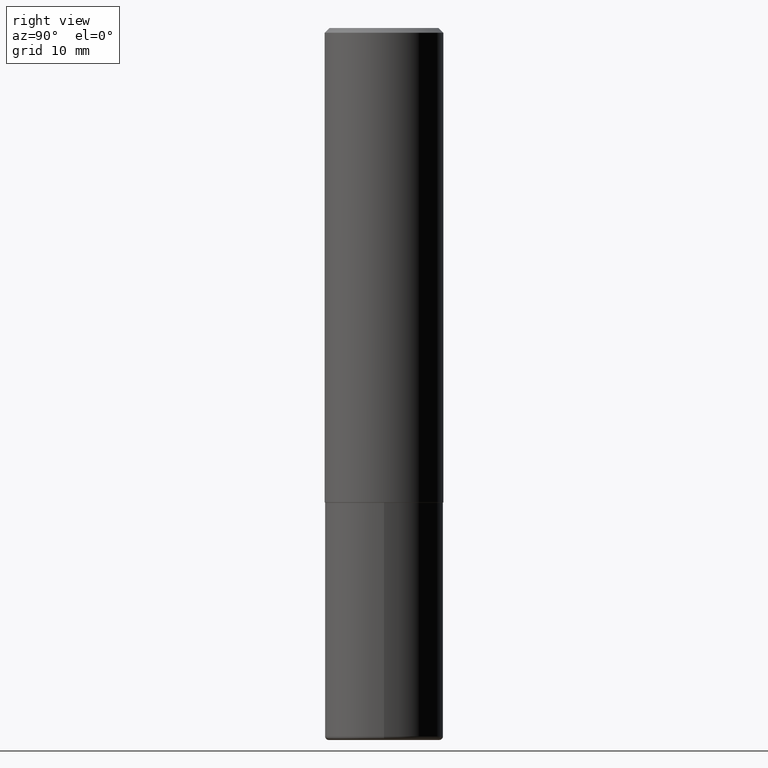
[diagram: clean part render]
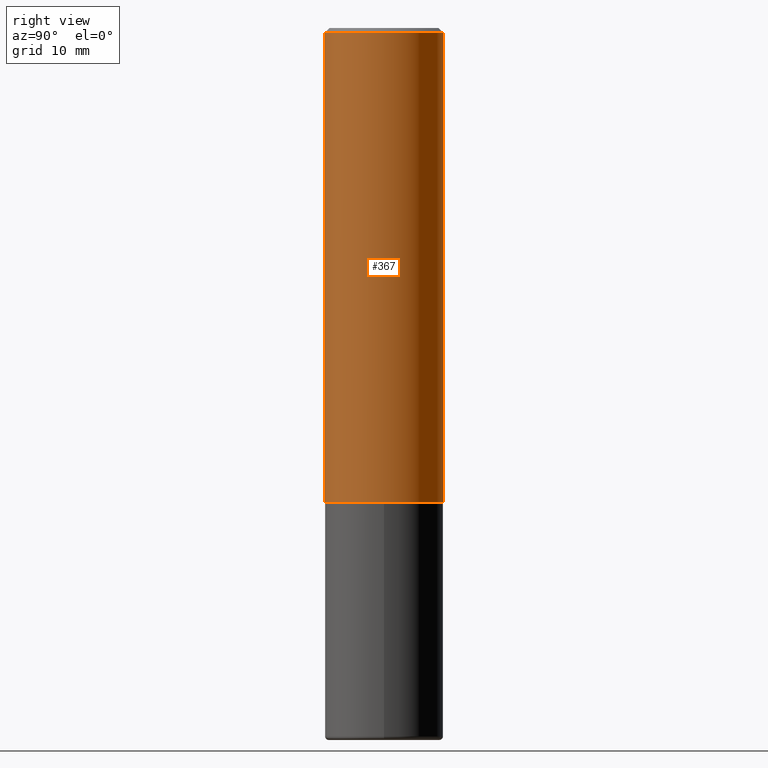
[diagram: same view with one face highlighted and labeled with its STEP entity id]
A machine part, right view. The second image highlights one B-rep face of the part: STEP entity #367.
In plain terms, the highlighted cylindrical surface (partial cylindrical patch) has radius 6.35 mm, axis along (-0, 0, 1).
Its self-contained STEP definition (entity closure, byte-faithful):
#3 = DIRECTION ( 'NONE',  ( -6.982962677686265922E-15, -1.000000000000000000, 3.483106191921935554E-15 ) ) ;
#5 = AXIS2_PLACEMENT_3D ( 'NONE', #352, #163, #3 ) ;
#10 = ORIENTED_EDGE ( 'NONE', *, *, #116, .F. ) ;
#26 = VECTOR ( 'NONE', #147, 39.37007874015748143 ) ;
#37 = DIRECTION ( 'NONE',  ( -2.446592051190030557E-29, 3.489872788065002235E-15, 1.000000000000000000 ) ) ;
#41 = AXIS2_PLACEMENT_3D ( 'NONE', #325, #301, #306 ) ;
#45 = VERTEX_POINT ( 'NONE', #197 ) ;
#68 = EDGE_LOOP ( 'NONE', ( #336, #200, #217, #10 ) ) ;
#72 = VECTOR ( 'NONE', #148, 39.37007874015748143 ) ;
#81 = CARTESIAN_POINT ( 'NONE',  ( -1.745740669421519346E-15, -0.2500000000000072164, -1.998999999999999444 ) ) ;
#86 = EDGE_CURVE ( 'NONE', #326, #322, #284, .T. ) ;
#116 = EDGE_CURVE ( 'NONE', #122, #45, #338, .T. ) ;
#122 = VERTEX_POINT ( 'NONE', #81 ) ;
#135 = CARTESIAN_POINT ( 'NONE',  ( 1.776356839400276497E-15, 0.2499999999999933109, -1.999000000000000998 ) ) ;
#147 = DIRECTION ( 'NONE',  ( -2.446592051190030838E-29, 3.489872788065001841E-15, 1.000000000000000000 ) ) ;
#148 = DIRECTION ( 'NONE',  ( -2.446592051190030838E-29, 3.489872788065001841E-15, 1.000000000000000000 ) ) ;
#150 = CIRCLE ( 'NONE', #165, 0.2500000000000002776 ) ;
#163 = DIRECTION ( 'NONE',  ( -2.446592051190030557E-29, 3.489872788065002235E-15, 1.000000000000000000 ) ) ;
#165 = AXIS2_PLACEMENT_3D ( 'NONE', #256, #37, #238 ) ;
#197 = CARTESIAN_POINT ( 'NONE',  ( -1.715124499442882299E-15, -0.2500000000000000555, -0.01999999999999918510 ) ) ;
#199 = FACE_OUTER_BOUND ( 'NONE', #68, .T. ) ;
#200 = ORIENTED_EDGE ( 'NONE', *, *, #86, .T. ) ;
#217 = ORIENTED_EDGE ( 'NONE', *, *, #347, .F. ) ;
#238 = DIRECTION ( 'NONE',  ( -6.982962677686265922E-15, -1.000000000000000000, 3.278217592397112312E-15 ) ) ;
#256 = CARTESIAN_POINT ( 'NONE',  ( 4.890737510328871163E-29, -6.976255703341939282E-15, -1.999000000000000110 ) ) ;
#278 = CARTESIAN_POINT ( 'NONE',  ( -1.745740669421567467E-15, -0.2500000000000001110, 8.724681970162509532E-16 ) ) ;
#284 = LINE ( 'NONE', #300, #72 ) ;
#300 = CARTESIAN_POINT ( 'NONE',  ( 1.776356839400251254E-15, 0.2500000000000001110, -8.724681970162509532E-16 ) ) ;
#301 = DIRECTION ( 'NONE',  ( -2.446592051190030557E-29, 3.489872788065002235E-15, 1.000000000000000000 ) ) ;
#306 = DIRECTION ( 'NONE',  ( -6.982962677686266711E-15, -1.000000000000000000, 3.489872788065002235E-15 ) ) ;
#322 = VERTEX_POINT ( 'NONE', #368 ) ;
#325 = CARTESIAN_POINT ( 'NONE',  ( 0.000000000000000000, 0.000000000000000000, 0.000000000000000000 ) ) ;
#326 = VERTEX_POINT ( 'NONE', #135 ) ;
#336 = ORIENTED_EDGE ( 'NONE', *, *, #415, .T. ) ;
#338 = LINE ( 'NONE', #278, #26 ) ;
#347 = EDGE_CURVE ( 'NONE', #45, #322, #350, .T. ) ;
#350 = CIRCLE ( 'NONE', #5, 0.2500000000000000000 ) ;
#352 = CARTESIAN_POINT ( 'NONE',  ( 4.893184102380074708E-31, -6.979745576130022269E-17, -0.02000000000000005593 ) ) ;
#363 = CYLINDRICAL_SURFACE ( 'NONE', #41, 0.2500000000000001110 ) ;
#367 = ADVANCED_FACE ( 'NONE', ( #199 ), #363, .T. ) ;
#368 = CARTESIAN_POINT ( 'NONE',  ( 1.745740669421566875E-15, 0.2499999999999999167, -0.02000000000000092676 ) ) ;
#415 = EDGE_CURVE ( 'NONE', #122, #326, #150, .T. ) ;